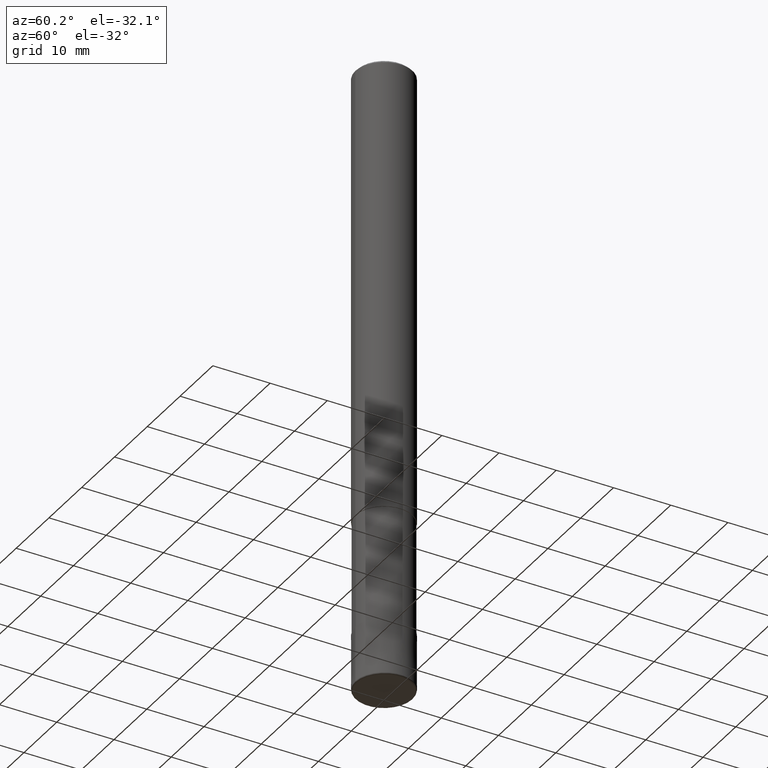
[diagram: clean part render]
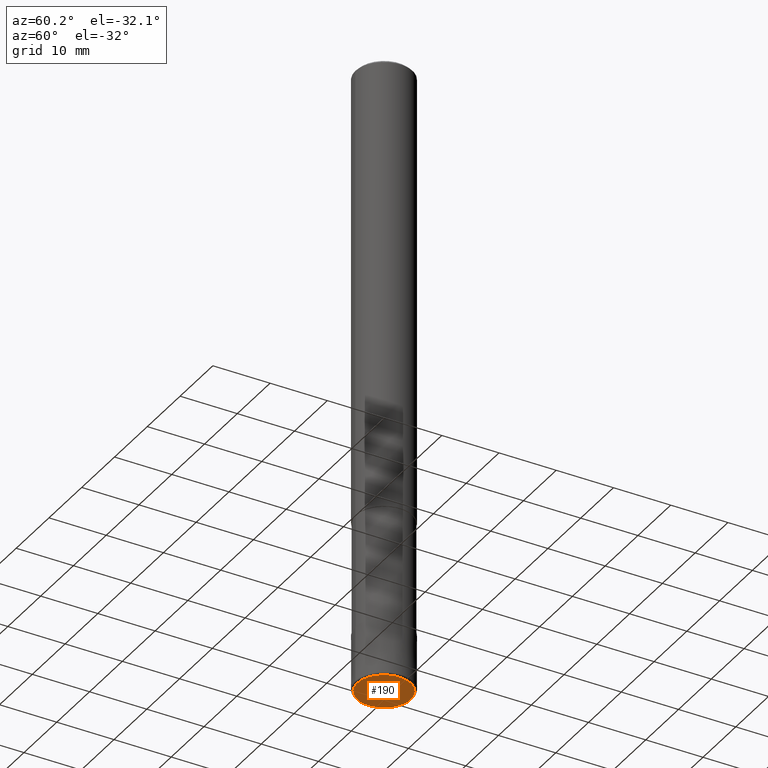
[diagram: same view with one face highlighted and labeled with its STEP entity id]
A machine part, auxiliary view. The second image highlights one B-rep face of the part: STEP entity #190.
In plain terms, the highlighted planar face has unit normal (0, 0, -1).
Its self-contained STEP definition (entity closure, byte-faithful):
#124=VERTEX_POINT('',#264);
#164=VERTEX_POINT('',#310);
#190=ADVANCED_FACE('',(#339),#340,.T.);
#204=EDGE_CURVE('',#164,#124,#356,.T.);
#208=EDGE_CURVE('',#124,#164,#361,.T.);
#264=CARTESIAN_POINT('',(5.75564986296517E-016,-4.7,-110.0));
#310=CARTESIAN_POINT('',(0.0,4.7,-110.0));
#339=FACE_OUTER_BOUND('',#513,.T.);
#340=PLANE('',#514);
#356=CIRCLE('',#532,4.7);
#361=CIRCLE('',#538,4.7);
#513=EDGE_LOOP('',(#676,#677));
#514=AXIS2_PLACEMENT_3D('',#678,#679,#680);
#532=AXIS2_PLACEMENT_3D('',#704,#705,#706);
#538=AXIS2_PLACEMENT_3D('',#713,#714,#715);
#676=ORIENTED_EDGE('',*,*,#204,.T.);
#677=ORIENTED_EDGE('',*,*,#208,.T.);
#678=CARTESIAN_POINT('',(0.0,2.35,-110.0));
#679=DIRECTION('',(0.0,0.0,-1.0));
#680=DIRECTION('',(0.0,1.0,0.0));
#704=CARTESIAN_POINT('',(0.0,0.0,-110.0));
#705=DIRECTION('',(0.0,0.0,-1.0));
#706=DIRECTION('',(0.0,1.0,0.0));
#713=CARTESIAN_POINT('',(0.0,0.0,-110.0));
#714=DIRECTION('',(0.0,0.0,-1.0));
#715=DIRECTION('',(0.0,1.0,0.0));